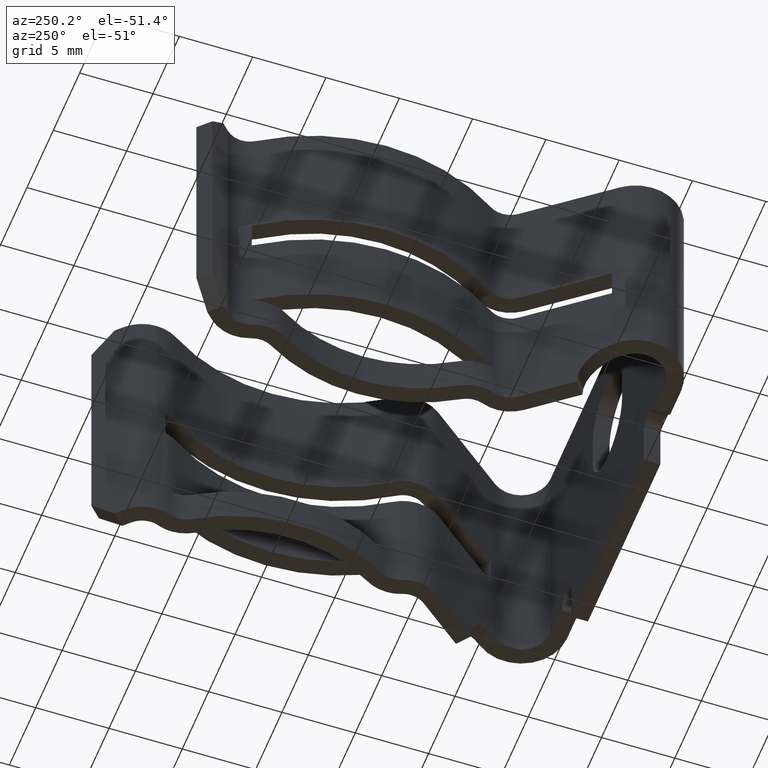
[diagram: clean part render]
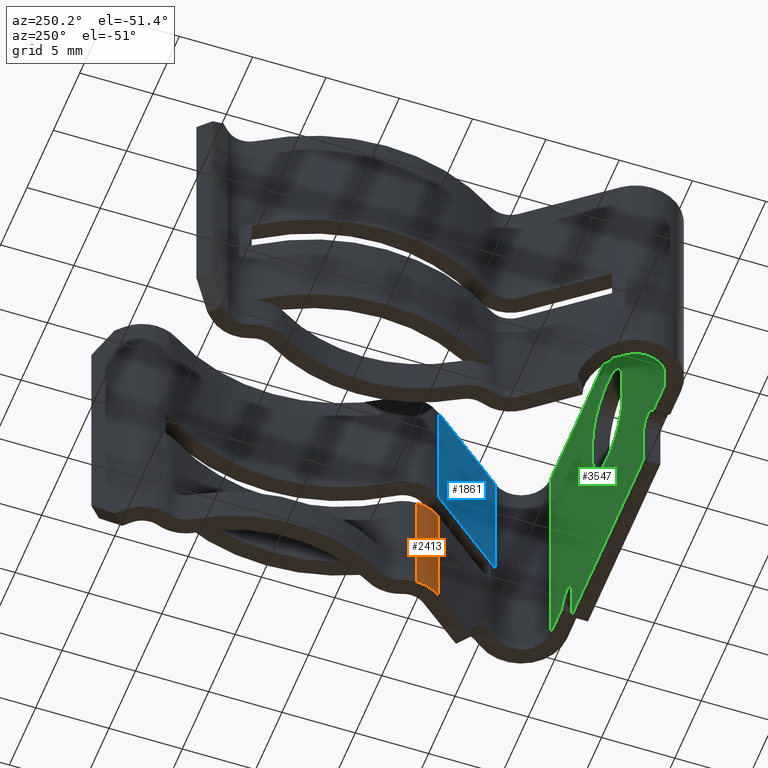
[diagram: same view with three faces highlighted in distinct colors, each labeled with its STEP entity id]
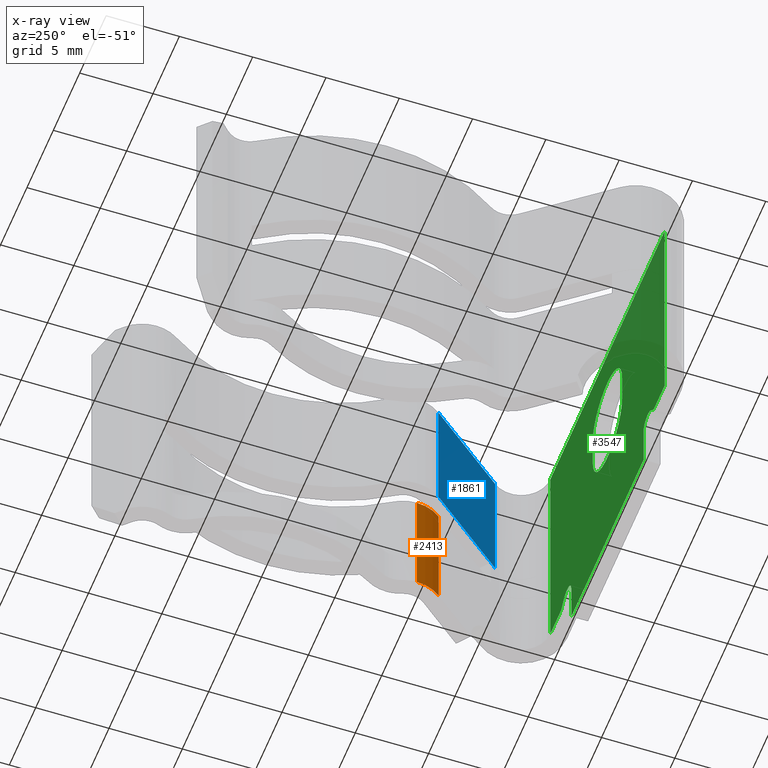
[diagram: x-ray of the same camera — body ghosted, the three highlighted faces saturated]
A machine part, auxiliary view with three faces highlighted in distinct colors.
The next image is the same camera in x-ray (body ghosted, the three faces saturated) — at least one of them is partly hidden behind the body in this view.
Their STEP definitions:

[orange] entity #2413 — the highlighted cylindrical surface (partial cylindrical patch) has radius 2.7178 mm, axis along (-0, -0, -1).
#46 = AXIS2_PLACEMENT_3D ( 'NONE', #3328, #3205, #3263 ) ;
#205 = CARTESIAN_POINT ( 'NONE',  ( 0.3190878198313835100, 0.3386091420499055000, 0.02000000000000000000 ) ) ;
#470 = LINE ( 'NONE', #205, #4171 ) ;
#531 = CIRCLE ( 'NONE', #679, 0.1069999999999999100 ) ;
#652 = LINE ( 'NONE', #2733, #1126 ) ;
#679 = AXIS2_PLACEMENT_3D ( 'NONE', #1795, #1778, #1771 ) ;
#1012 = CARTESIAN_POINT ( 'NONE',  ( 0.3190878198313835100, 0.3386091420499055000, -0.3999999999999999700 ) ) ;
#1126 = VECTOR ( 'NONE', #2670, 39.37007874015748100 ) ;
#1199 = CIRCLE ( 'NONE', #3659, 0.1069999999999999100 ) ;
#1254 = VERTEX_POINT ( 'NONE', #3826 ) ;
#1330 = FACE_OUTER_BOUND ( 'NONE', #3406, .T. ) ;
#1771 = DIRECTION ( 'NONE',  ( -1.000000000000000000, 0.0000000000000000000, 0.0000000000000000000 ) ) ;
#1778 = DIRECTION ( 'NONE',  ( -0.0000000000000000000, -0.0000000000000000000, -1.000000000000000000 ) ) ;
#1795 = CARTESIAN_POINT ( 'NONE',  ( 0.4029999999999999700, 0.4050000000000000300, -0.7199999999999999700 ) ) ;
#2413 = ADVANCED_FACE ( 'NONE', ( #1330 ), #3119, .T. ) ;
#2670 = DIRECTION ( 'NONE',  ( -0.0000000000000000000, -0.0000000000000000000, -1.000000000000000000 ) ) ;
#2727 = VERTEX_POINT ( 'NONE', #2987 ) ;
#2733 = CARTESIAN_POINT ( 'NONE',  ( 0.2960000000000000400, 0.4050000000000000300, 0.02000000000000000000 ) ) ;
#2861 = DIRECTION ( 'NONE',  ( -6.382822415103424200E-016, 1.000000000000000000, 0.0000000000000000000 ) ) ;
#2866 = DIRECTION ( 'NONE',  ( -0.0000000000000000000, -1.288607544181256200E-016, 1.000000000000000000 ) ) ;
#2878 = CARTESIAN_POINT ( 'NONE',  ( 0.4029999999999999700, 0.4050000000000000300, -0.3999999999999999100 ) ) ;
#2970 = ORIENTED_EDGE ( 'NONE', *, *, #3441, .T. ) ;
#2987 = CARTESIAN_POINT ( 'NONE',  ( 0.2960000000000000400, 0.4050000000000000300, -0.7199999999999999700 ) ) ;
#3051 = VERTEX_POINT ( 'NONE', #3136 ) ;
#3119 = CYLINDRICAL_SURFACE ( 'NONE', #46, 0.1069999999999999100 ) ;
#3136 = CARTESIAN_POINT ( 'NONE',  ( 0.2960000000000000400, 0.4050000000000000300, -0.3999999999999999100 ) ) ;
#3205 = DIRECTION ( 'NONE',  ( -0.0000000000000000000, -0.0000000000000000000, -1.000000000000000000 ) ) ;
#3263 = DIRECTION ( 'NONE',  ( -1.000000000000000000, 0.0000000000000000000, 0.0000000000000000000 ) ) ;
#3320 = ORIENTED_EDGE ( 'NONE', *, *, #3376, .F. ) ;
#3328 = CARTESIAN_POINT ( 'NONE',  ( 0.4029999999999999700, 0.4050000000000000300, 0.02000000000000000000 ) ) ;
#3376 = EDGE_CURVE ( 'NONE', #3051, #4542, #1199, .T. ) ;
#3384 = ORIENTED_EDGE ( 'NONE', *, *, #3693, .F. ) ;
#3406 = EDGE_LOOP ( 'NONE', ( #3320, #2970, #3896, #3384 ) ) ;
#3441 = EDGE_CURVE ( 'NONE', #3051, #2727, #652, .T. ) ;
#3493 = EDGE_CURVE ( 'NONE', #1254, #2727, #531, .T. ) ;
#3659 = AXIS2_PLACEMENT_3D ( 'NONE', #2878, #2866, #2861 ) ;
#3693 = EDGE_CURVE ( 'NONE', #4542, #1254, #470, .T. ) ;
#3826 = CARTESIAN_POINT ( 'NONE',  ( 0.3190878198313835100, 0.3386091420499055000, -0.7199999999999999700 ) ) ;
#3896 = ORIENTED_EDGE ( 'NONE', *, *, #3493, .F. ) ;
#4171 = VECTOR ( 'NONE', #4317, 39.37007874015748100 ) ;
#4317 = DIRECTION ( 'NONE',  ( -0.0000000000000000000, -0.0000000000000000000, -1.000000000000000000 ) ) ;
#4542 = VERTEX_POINT ( 'NONE', #1012 ) ;

[blue] entity #1861 — the highlighted planar face has unit normal (-0.7842, -0.6205, 0).
#197 = DIRECTION ( 'NONE',  ( -0.7842259828842669300, -0.6204753079448088700, 0.0000000000000000000 ) ) ;
#405 = ORIENTED_EDGE ( 'NONE', *, *, #1292, .F. ) ;
#418 = LINE ( 'NONE', #4024, #3121 ) ;
#489 = EDGE_CURVE ( 'NONE', #4298, #2055, #418, .T. ) ;
#669 = DIRECTION ( 'NONE',  ( -0.0000000000000000000, -0.0000000000000000000, -1.000000000000000000 ) ) ;
#753 = CARTESIAN_POINT ( 'NONE',  ( 0.4869888472576595600, 0.1263970740196950500, 0.02000000000000000000 ) ) ;
#814 = DIRECTION ( 'NONE',  ( -0.6204753079448088700, 0.7842259828842668100, 0.0000000000000000000 ) ) ;
#867 = ORIENTED_EDGE ( 'NONE', *, *, #4102, .F. ) ;
#879 = FACE_OUTER_BOUND ( 'NONE', #1361, .T. ) ;
#927 = VERTEX_POINT ( 'NONE', #2555 ) ;
#960 = CARTESIAN_POINT ( 'NONE',  ( 0.4869888472576596200, 0.1263970740196950800, -0.3200000000000000100 ) ) ;
#1292 = EDGE_CURVE ( 'NONE', #4298, #3678, #1606, .T. ) ;
#1361 = EDGE_LOOP ( 'NONE', ( #867, #405, #1774, #2899 ) ) ;
#1429 = DIRECTION ( 'NONE',  ( -0.0000000000000000000, -0.0000000000000000000, -1.000000000000000000 ) ) ;
#1592 = CARTESIAN_POINT ( 'NONE',  ( 0.3190878198313835100, 0.3386091420499055000, 0.02000000000000000000 ) ) ;
#1606 = LINE ( 'NONE', #753, #1793 ) ;
#1724 = CARTESIAN_POINT ( 'NONE',  ( 0.3190878198313835100, 0.3386091420499055000, 0.02000000000000000000 ) ) ;
#1774 = ORIENTED_EDGE ( 'NONE', *, *, #489, .T. ) ;
#1793 = VECTOR ( 'NONE', #669, 39.37007874015748100 ) ;
#1861 = ADVANCED_FACE ( 'NONE', ( #879 ), #4473, .T. ) ;
#2055 = VERTEX_POINT ( 'NONE', #1724 ) ;
#2312 = CARTESIAN_POINT ( 'NONE',  ( 0.4869888472576595600, 0.1263970740196950500, 0.02000000000000000000 ) ) ;
#2555 = CARTESIAN_POINT ( 'NONE',  ( 0.3190878198313835100, 0.3386091420499055000, -0.3200000000000000100 ) ) ;
#2744 = DIRECTION ( 'NONE',  ( 0.6204753079448088700, -0.7842259828842669300, 0.0000000000000000000 ) ) ;
#2899 = ORIENTED_EDGE ( 'NONE', *, *, #3092, .T. ) ;
#3052 = VECTOR ( 'NONE', #3439, 39.37007874015748900 ) ;
#3055 = VECTOR ( 'NONE', #1429, 39.37007874015748100 ) ;
#3092 = EDGE_CURVE ( 'NONE', #2055, #927, #4003, .T. ) ;
#3121 = VECTOR ( 'NONE', #814, 39.37007874015748900 ) ;
#3439 = DIRECTION ( 'NONE',  ( -0.6204753079448088700, 0.7842259828842669300, 1.010559517887627100E-016 ) ) ;
#3467 = CARTESIAN_POINT ( 'NONE',  ( 0.4869888472576595600, 0.1263970740196950800, -0.3200000000000000100 ) ) ;
#3678 = VERTEX_POINT ( 'NONE', #960 ) ;
#4001 = LINE ( 'NONE', #3467, #3052 ) ;
#4003 = LINE ( 'NONE', #1592, #3055 ) ;
#4024 = CARTESIAN_POINT ( 'NONE',  ( 0.4869888472576595600, 0.1263970740196950500, 0.02000000000000000000 ) ) ;
#4102 = EDGE_CURVE ( 'NONE', #3678, #927, #4001, .T. ) ;
#4253 = AXIS2_PLACEMENT_3D ( 'NONE', #4491, #197, #2744 ) ;
#4298 = VERTEX_POINT ( 'NONE', #2312 ) ;
#4473 = PLANE ( 'NONE',  #4253 ) ;
#4491 = CARTESIAN_POINT ( 'NONE',  ( 0.4869888472576595600, 0.1263970740196950500, 0.02000000000000000000 ) ) ;

[green] entity #3547 — the highlighted planar face has unit normal (0, 1, 0).
#17 = VECTOR ( 'NONE', #2368, 39.37007874015748100 ) ;
#77 = DIRECTION ( 'NONE',  ( 1.000000000000000000, 0.0000000000000000000, 0.0000000000000000000 ) ) ;
#95 = CARTESIAN_POINT ( 'NONE',  ( -0.2700000000000000200, 0.0000000000000000000, -0.7199999999999999700 ) ) ;
#128 = VECTOR ( 'NONE', #774, 39.37007874015748100 ) ;
#218 = EDGE_CURVE ( 'NONE', #2381, #2564, #2009, .T. ) ;
#244 = VECTOR ( 'NONE', #3058, 39.37007874015748100 ) ;
#319 = CARTESIAN_POINT ( 'NONE',  ( -0.2700000000000002400, 0.0000000000000000000, 0.02000000000000004600 ) ) ;
#320 = VERTEX_POINT ( 'NONE', #4321 ) ;
#323 = EDGE_CURVE ( 'NONE', #320, #2381, #535, .T. ) ;
#335 = VECTOR ( 'NONE', #77, 39.37007874015748100 ) ;
#354 = EDGE_CURVE ( 'NONE', #3418, #926, #2184, .T. ) ;
#355 = CARTESIAN_POINT ( 'NONE',  ( -0.3529893000795557000, 0.0000000000000000000, 0.09282992051313021500 ) ) ;
#369 = CARTESIAN_POINT ( 'NONE',  ( -0.3448406204335658400, 0.0000000000000000000, -0.6049999999999999800 ) ) ;
#390 = EDGE_CURVE ( 'NONE', #693, #3418, #2067, .T. ) ;
#395 = DIRECTION ( 'NONE',  ( 1.000000000000000000, -0.0000000000000000000, 0.0000000000000000000 ) ) ;
#428 = VERTEX_POINT ( 'NONE', #3710 ) ;
#447 = EDGE_CURVE ( 'NONE', #834, #2975, #1108, .T. ) ;
#453 = CARTESIAN_POINT ( 'NONE',  ( 0.2700000000000000200, 0.0000000000000000000, -0.7199999999999999700 ) ) ;
#478 = EDGE_CURVE ( 'NONE', #1322, #1981, #3582, .T. ) ;
#512 = CARTESIAN_POINT ( 'NONE',  ( -0.3229203102167830800, 0.0000000000000000000, -0.5830796897832172300 ) ) ;
#535 = LINE ( 'NONE', #355, #4400 ) ;
#562 = EDGE_CURVE ( 'NONE', #3680, #1322, #1669, .T. ) ;
#578 = LINE ( 'NONE', #2429, #335 ) ;
#597 = CARTESIAN_POINT ( 'NONE',  ( 0.3009999999999999900, 0.0000000000000000000, -0.6049999999999999800 ) ) ;
#638 = EDGE_CURVE ( 'NONE', #762, #3680, #992, .T. ) ;
#645 = DIRECTION ( 'NONE',  ( -0.0000000000000000000, -0.0000000000000000000, -1.000000000000000000 ) ) ;
#658 = CARTESIAN_POINT ( 'NONE',  ( -0.1095000000000000000, 0.0000000000000000000, -0.2839999999999999700 ) ) ;
#693 = VERTEX_POINT ( 'NONE', #453 ) ;
#712 = EDGE_CURVE ( 'NONE', #3485, #762, #3178, .T. ) ;
#717 = CIRCLE ( 'NONE', #1332, 0.03100000000000002400 ) ;
#734 = EDGE_CURVE ( 'NONE', #1249, #428, #3474, .T. ) ;
#762 = VERTEX_POINT ( 'NONE', #4000 ) ;
#774 = DIRECTION ( 'NONE',  ( 2.969399993113331600E-016, -0.0000000000000000000, 1.000000000000000000 ) ) ;
#786 = EDGE_CURVE ( 'NONE', #3655, #1249, #2528, .T. ) ;
#799 = ORIENTED_EDGE ( 'NONE', *, *, #354, .F. ) ;
#824 = ORIENTED_EDGE ( 'NONE', *, *, #712, .F. ) ;
#834 = VERTEX_POINT ( 'NONE', #3329 ) ;
#841 = EDGE_CURVE ( 'NONE', #4132, #3655, #3469, .T. ) ;
#843 = AXIS2_PLACEMENT_3D ( 'NONE', #2769, #2767, #2760 ) ;
#870 = EDGE_CURVE ( 'NONE', #3748, #4132, #3231, .T. ) ;
#910 = ORIENTED_EDGE ( 'NONE', *, *, #870, .F. ) ;
#924 = CARTESIAN_POINT ( 'NONE',  ( 0.2700000000000003500, 0.0000000000000000000, 0.01999999999999979600 ) ) ;
#926 = VERTEX_POINT ( 'NONE', #2679 ) ;
#992 = LINE ( 'NONE', #2023, #4551 ) ;
#1019 = EDGE_CURVE ( 'NONE', #2574, #2564, #4393, .T. ) ;
#1082 = ORIENTED_EDGE ( 'NONE', *, *, #390, .F. ) ;
#1101 = CARTESIAN_POINT ( 'NONE',  ( -0.4258192205926868400, 0.0000000000000000000, -0.6049999999999999800 ) ) ;
#1108 = LINE ( 'NONE', #319, #17 ) ;
#1148 = ORIENTED_EDGE ( 'NONE', *, *, #786, .F. ) ;
#1154 = VECTOR ( 'NONE', #3871, 39.37007874015748100 ) ;
#1194 = CARTESIAN_POINT ( 'NONE',  ( -0.1095000000000000000, 0.0000000000000000000, -0.1999999999999999800 ) ) ;
#1212 = ORIENTED_EDGE ( 'NONE', *, *, #218, .F. ) ;
#1230 = CARTESIAN_POINT ( 'NONE',  ( 0.4258192205926868400, 5.122214988120493500E-017, 0.02000000000000000000 ) ) ;
#1239 = AXIS2_PLACEMENT_3D ( 'NONE', #2374, #2087, #2078 ) ;
#1240 = AXIS2_PLACEMENT_3D ( 'NONE', #4250, #4242, #3067 ) ;
#1249 = VERTEX_POINT ( 'NONE', #1194 ) ;
#1289 = ORIENTED_EDGE ( 'NONE', *, *, #1019, .T. ) ;
#1293 = DIRECTION ( 'NONE',  ( 0.0000000000000000000, 1.000000000000000000, 0.0000000000000000000 ) ) ;
#1315 = AXIS2_PLACEMENT_3D ( 'NONE', #597, #1293, #1627 ) ;
#1321 = ORIENTED_EDGE ( 'NONE', *, *, #734, .F. ) ;
#1322 = VERTEX_POINT ( 'NONE', #512 ) ;
#1325 = VECTOR ( 'NONE', #3790, 39.37007874015748100 ) ;
#1332 = AXIS2_PLACEMENT_3D ( 'NONE', #2656, #2630, #2604 ) ;
#1425 = CARTESIAN_POINT ( 'NONE',  ( 0.4258192205926866800, 0.0000000000000000000, -0.6049999999999999800 ) ) ;
#1447 = DIRECTION ( 'NONE',  ( 0.0000000000000000000, -0.0000000000000000000, 1.000000000000000000 ) ) ;
#1464 = DIRECTION ( 'NONE',  ( 0.0000000000000000000, 1.000000000000000000, 0.0000000000000000000 ) ) ;
#1473 = CARTESIAN_POINT ( 'NONE',  ( 0.4258192205926868400, 5.122214988120493500E-017, 0.02000000000000000000 ) ) ;
#1496 = DIRECTION ( 'NONE',  ( -0.0000000000000000000, -0.0000000000000000000, -1.000000000000000000 ) ) ;
#1531 = EDGE_LOOP ( 'NONE', ( #1212, #4574, #3280, #799, #1082, #2806, #2611, #2394, #4283, #4157, #3551, #824, #4590, #1289 ) ) ;
#1549 = AXIS2_PLACEMENT_3D ( 'NONE', #4524, #4522, #4497 ) ;
#1580 = PLANE ( 'NONE',  #1634 ) ;
#1627 = DIRECTION ( 'NONE',  ( 0.0000000000000000000, 0.0000000000000000000, 1.000000000000000000 ) ) ;
#1634 = AXIS2_PLACEMENT_3D ( 'NONE', #1641, #1464, #1447 ) ;
#1641 = CARTESIAN_POINT ( 'NONE',  ( -0.4258192205926868400, 0.0000000000000000000, 0.02000000000000000000 ) ) ;
#1669 = LINE ( 'NONE', #3816, #1325 ) ;
#1787 = EDGE_CURVE ( 'NONE', #2975, #693, #578, .T. ) ;
#1858 = CARTESIAN_POINT ( 'NONE',  ( -0.4258192205926868400, 0.0000000000000000000, 0.02000000000000000000 ) ) ;
#1870 = EDGE_CURVE ( 'NONE', #3485, #2574, #3814, .T. ) ;
#1959 = DIRECTION ( 'NONE',  ( 0.7071067811865430200, 0.0000000000000000000, -0.7071067811865519000 ) ) ;
#1971 = DIRECTION ( 'NONE',  ( 1.000000000000000000, 0.0000000000000000000, 0.0000000000000000000 ) ) ;
#1981 = VERTEX_POINT ( 'NONE', #3530 ) ;
#2009 = LINE ( 'NONE', #1101, #3349 ) ;
#2023 = CARTESIAN_POINT ( 'NONE',  ( -0.4258192205926868400, 0.0000000000000000000, -0.6049999999999999800 ) ) ;
#2067 = LINE ( 'NONE', #924, #128 ) ;
#2078 = DIRECTION ( 'NONE',  ( 0.0000000000000000000, 0.0000000000000000000, 1.000000000000000000 ) ) ;
#2087 = DIRECTION ( 'NONE',  ( 0.0000000000000000000, 1.000000000000000000, 0.0000000000000000000 ) ) ;
#2184 = CIRCLE ( 'NONE', #1315, 0.03100000000000002400 ) ;
#2230 = FACE_BOUND ( 'NONE', #2345, .T. ) ;
#2338 = CIRCLE ( 'NONE', #1239, 0.03100000000000002400 ) ;
#2345 = EDGE_LOOP ( 'NONE', ( #1321, #1148, #4195, #910, #2433 ) ) ;
#2368 = DIRECTION ( 'NONE',  ( 2.969399993113331600E-016, 0.0000000000000000000, -1.000000000000000000 ) ) ;
#2374 = CARTESIAN_POINT ( 'NONE',  ( -0.3009999999999999900, 0.0000000000000000000, -0.6049999999999999800 ) ) ;
#2381 = VERTEX_POINT ( 'NONE', #3611 ) ;
#2394 = ORIENTED_EDGE ( 'NONE', *, *, #3068, .F. ) ;
#2429 = CARTESIAN_POINT ( 'NONE',  ( -0.4258192205926868400, 0.0000000000000000000, -0.7199999999999999700 ) ) ;
#2433 = ORIENTED_EDGE ( 'NONE', *, *, #2745, .F. ) ;
#2493 = DIRECTION ( 'NONE',  ( 1.000000000000000000, 0.0000000000000000000, 0.0000000000000000000 ) ) ;
#2528 = LINE ( 'NONE', #3994, #1154 ) ;
#2564 = VERTEX_POINT ( 'NONE', #1425 ) ;
#2574 = VERTEX_POINT ( 'NONE', #1230 ) ;
#2597 = AXIS2_PLACEMENT_3D ( 'NONE', #3252, #3242, #3229 ) ;
#2604 = DIRECTION ( 'NONE',  ( 0.0000000000000000000, 0.0000000000000000000, 1.000000000000000000 ) ) ;
#2611 = ORIENTED_EDGE ( 'NONE', *, *, #447, .F. ) ;
#2630 = DIRECTION ( 'NONE',  ( 0.0000000000000000000, 1.000000000000000000, 0.0000000000000000000 ) ) ;
#2656 = CARTESIAN_POINT ( 'NONE',  ( 0.3009999999999999900, 0.0000000000000000000, -0.6049999999999999800 ) ) ;
#2679 = CARTESIAN_POINT ( 'NONE',  ( 0.3009999999999999900, 0.0000000000000000000, -0.5740000000000000700 ) ) ;
#2745 = EDGE_CURVE ( 'NONE', #428, #3748, #3462, .T. ) ;
#2752 = EDGE_CURVE ( 'NONE', #926, #320, #717, .T. ) ;
#2760 = DIRECTION ( 'NONE',  ( 0.0000000000000000000, 0.0000000000000000000, 1.000000000000000000 ) ) ;
#2767 = DIRECTION ( 'NONE',  ( 0.0000000000000000000, 1.000000000000000000, 0.0000000000000000000 ) ) ;
#2769 = CARTESIAN_POINT ( 'NONE',  ( 0.0000000000000000000, 0.0000000000000000000, -0.1999999999999999800 ) ) ;
#2806 = ORIENTED_EDGE ( 'NONE', *, *, #1787, .F. ) ;
#2862 = VECTOR ( 'NONE', #2493, 39.37007874015748100 ) ;
#2903 = VECTOR ( 'NONE', #645, 39.37007874015748100 ) ;
#2918 = CARTESIAN_POINT ( 'NONE',  ( 0.2700000000000000700, 0.0000000000000000000, -0.6049999999999999800 ) ) ;
#2975 = VERTEX_POINT ( 'NONE', #95 ) ;
#3021 = CARTESIAN_POINT ( 'NONE',  ( 0.1095000000000000000, 0.0000000000000000000, -0.1999999999999999800 ) ) ;
#3058 = DIRECTION ( 'NONE',  ( 0.0000000000000000000, 0.0000000000000000000, -1.000000000000000000 ) ) ;
#3067 = DIRECTION ( 'NONE',  ( 0.0000000000000000000, 0.0000000000000000000, 1.000000000000000000 ) ) ;
#3068 = EDGE_CURVE ( 'NONE', #1981, #834, #2338, .T. ) ;
#3170 = FACE_OUTER_BOUND ( 'NONE', #1531, .T. ) ;
#3178 = LINE ( 'NONE', #4530, #2903 ) ;
#3229 = DIRECTION ( 'NONE',  ( 0.0000000000000000000, 0.0000000000000000000, 1.000000000000000000 ) ) ;
#3231 = LINE ( 'NONE', #3021, #244 ) ;
#3242 = DIRECTION ( 'NONE',  ( 0.0000000000000000000, 1.000000000000000000, 0.0000000000000000000 ) ) ;
#3252 = CARTESIAN_POINT ( 'NONE',  ( 0.0000000000000000000, 0.0000000000000000000, -0.2839999999999999700 ) ) ;
#3280 = ORIENTED_EDGE ( 'NONE', *, *, #2752, .F. ) ;
#3329 = CARTESIAN_POINT ( 'NONE',  ( -0.2700000000000000700, 0.0000000000000000000, -0.6049999999999999800 ) ) ;
#3349 = VECTOR ( 'NONE', #395, 39.37007874015748100 ) ;
#3418 = VERTEX_POINT ( 'NONE', #2918 ) ;
#3421 = CARTESIAN_POINT ( 'NONE',  ( 0.1095000000000000000, 0.0000000000000000000, -0.2839999999999999700 ) ) ;
#3462 = CIRCLE ( 'NONE', #843, 0.1095000000000000000 ) ;
#3469 = CIRCLE ( 'NONE', #2597, 0.1094999999999999900 ) ;
#3474 = CIRCLE ( 'NONE', #1549, 0.1095000000000000000 ) ;
#3485 = VERTEX_POINT ( 'NONE', #1858 ) ;
#3530 = CARTESIAN_POINT ( 'NONE',  ( -0.3009999999999999900, 0.0000000000000000000, -0.5740000000000000700 ) ) ;
#3547 = ADVANCED_FACE ( 'NONE', ( #3170, #2230 ), #1580, .T. ) ;
#3551 = ORIENTED_EDGE ( 'NONE', *, *, #638, .F. ) ;
#3582 = CIRCLE ( 'NONE', #1240, 0.03100000000000002400 ) ;
#3611 = CARTESIAN_POINT ( 'NONE',  ( 0.3448406204335657800, 0.0000000000000000000, -0.6049999999999999800 ) ) ;
#3655 = VERTEX_POINT ( 'NONE', #658 ) ;
#3680 = VERTEX_POINT ( 'NONE', #369 ) ;
#3710 = CARTESIAN_POINT ( 'NONE',  ( 0.0000000000000000000, 0.0000000000000000000, -0.09049999999999998300 ) ) ;
#3748 = VERTEX_POINT ( 'NONE', #3822 ) ;
#3790 = DIRECTION ( 'NONE',  ( 0.7071067811865442400, -0.0000000000000000000, 0.7071067811865507900 ) ) ;
#3814 = LINE ( 'NONE', #4207, #2862 ) ;
#3816 = CARTESIAN_POINT ( 'NONE',  ( -0.07282992051312595100, 0.0000000000000000000, -0.3329893000795576300 ) ) ;
#3822 = CARTESIAN_POINT ( 'NONE',  ( 0.1095000000000000100, 0.0000000000000000000, -0.1999999999999999800 ) ) ;
#3871 = DIRECTION ( 'NONE',  ( -0.0000000000000000000, -0.0000000000000000000, 1.000000000000000000 ) ) ;
#3994 = CARTESIAN_POINT ( 'NONE',  ( -0.1095000000000000000, 0.0000000000000000000, -0.1999999999999999800 ) ) ;
#4000 = CARTESIAN_POINT ( 'NONE',  ( -0.4258192205926868400, 5.122214988120493500E-017, -0.6049999999999999800 ) ) ;
#4132 = VERTEX_POINT ( 'NONE', #3421 ) ;
#4157 = ORIENTED_EDGE ( 'NONE', *, *, #562, .F. ) ;
#4195 = ORIENTED_EDGE ( 'NONE', *, *, #841, .F. ) ;
#4207 = CARTESIAN_POINT ( 'NONE',  ( -0.4258192205926868400, 0.0000000000000000000, 0.02000000000000000000 ) ) ;
#4242 = DIRECTION ( 'NONE',  ( 0.0000000000000000000, 1.000000000000000000, 0.0000000000000000000 ) ) ;
#4250 = CARTESIAN_POINT ( 'NONE',  ( -0.3009999999999999900, 0.0000000000000000000, -0.6049999999999999800 ) ) ;
#4283 = ORIENTED_EDGE ( 'NONE', *, *, #478, .F. ) ;
#4289 = VECTOR ( 'NONE', #1496, 39.37007874015748100 ) ;
#4321 = CARTESIAN_POINT ( 'NONE',  ( 0.3229203102167830800, 0.0000000000000000000, -0.5830796897832172300 ) ) ;
#4393 = LINE ( 'NONE', #1473, #4289 ) ;
#4400 = VECTOR ( 'NONE', #1959, 39.37007874015748900 ) ;
#4497 = DIRECTION ( 'NONE',  ( 0.0000000000000000000, 0.0000000000000000000, 1.000000000000000000 ) ) ;
#4522 = DIRECTION ( 'NONE',  ( 0.0000000000000000000, 1.000000000000000000, 0.0000000000000000000 ) ) ;
#4524 = CARTESIAN_POINT ( 'NONE',  ( 0.0000000000000000000, 0.0000000000000000000, -0.1999999999999999800 ) ) ;
#4530 = CARTESIAN_POINT ( 'NONE',  ( -0.4258192205926868400, 0.0000000000000000000, 0.02000000000000000000 ) ) ;
#4551 = VECTOR ( 'NONE', #1971, 39.37007874015748100 ) ;
#4574 = ORIENTED_EDGE ( 'NONE', *, *, #323, .F. ) ;
#4590 = ORIENTED_EDGE ( 'NONE', *, *, #1870, .T. ) ;